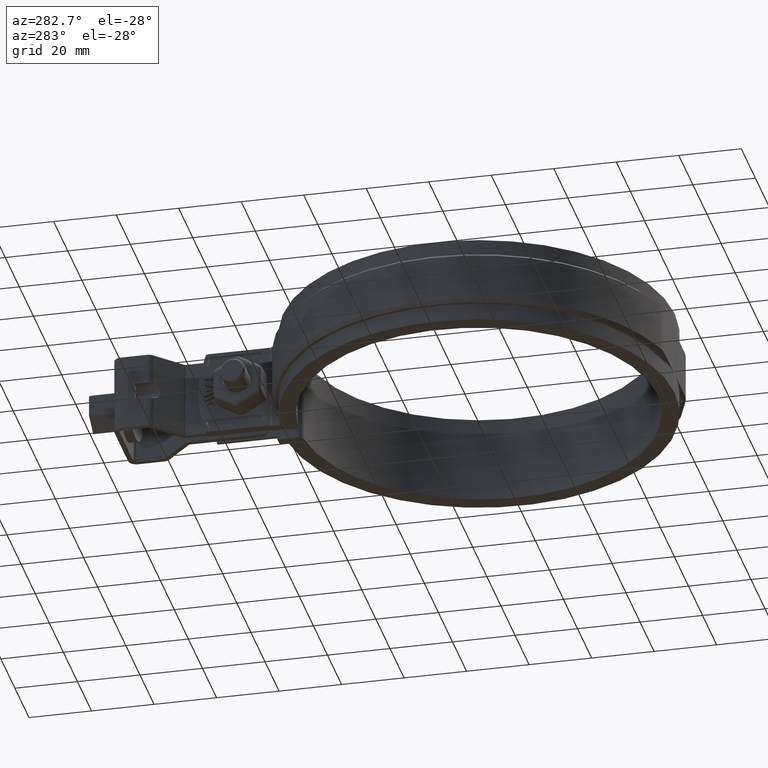
[diagram: clean part render]
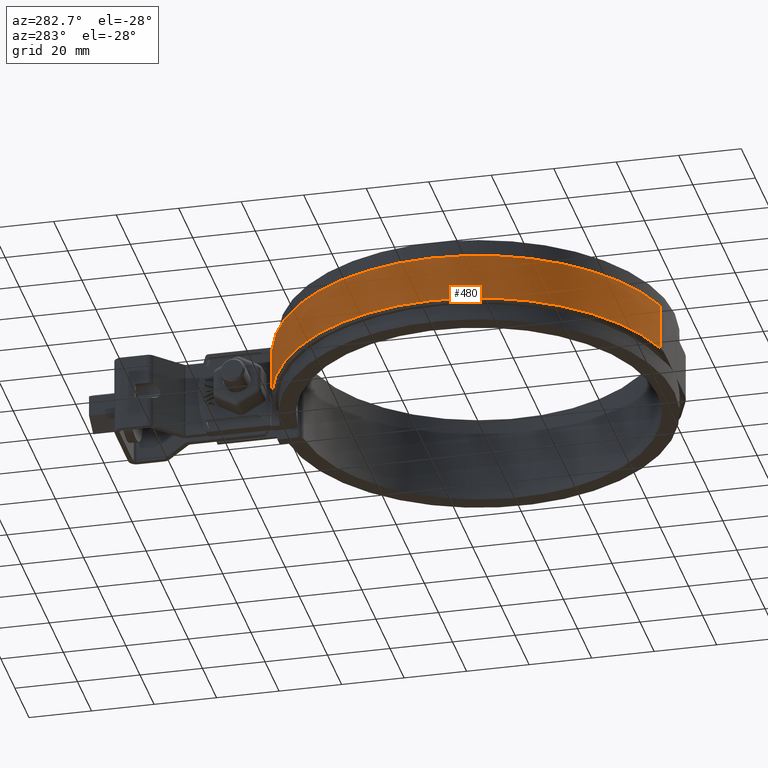
[diagram: same view with one face highlighted and labeled with its STEP entity id]
A machine part, auxiliary view. The second image highlights one B-rep face of the part: STEP entity #480.
In plain terms, the highlighted cylindrical surface (partial cylindrical patch) has radius 64.65 mm, axis along (0, 0, 1).
Its self-contained STEP definition (entity closure, byte-faithful):
#480 = ADVANCED_FACE( '', ( #937 ), #938, .T. );
#937 = FACE_OUTER_BOUND( '', #2194, .T. );
#938 = CYLINDRICAL_SURFACE( '', #2195, 64.6500000000000 );
#2194 = EDGE_LOOP( '', ( #4270, #4271, #4272, #4273 ) );
#2195 = AXIS2_PLACEMENT_3D( '', #4274, #4275, #4276 );
#4270 = ORIENTED_EDGE( '', *, *, #6227, .T. );
#4271 = ORIENTED_EDGE( '', *, *, #6344, .T. );
#4272 = ORIENTED_EDGE( '', *, *, #6351, .T. );
#4273 = ORIENTED_EDGE( '', *, *, #6348, .T. );
#4274 = CARTESIAN_POINT( '', ( -4.33680868994202E-015, 5.55111512312578E-014, -8.50000000000000 ) );
#4275 = DIRECTION( '', ( 0.000000000000000, 0.000000000000000, 1.00000000000000 ) );
#4276 = DIRECTION( '', ( -0.0773395204949730, 0.997004813714361, 0.000000000000000 ) );
#6227 = EDGE_CURVE( '', #7279, #7277, #7280, .T. );
#6344 = EDGE_CURVE( '', #7277, #7460, #7462, .T. );
#6348 = EDGE_CURVE( '', #7440, #7279, #7467, .T. );
#6351 = EDGE_CURVE( '', #7460, #7440, #7470, .T. );
#7277 = VERTEX_POINT( '', #10465 );
#7279 = VERTEX_POINT( '', #10470 );
#7280 = LINE( '', #10471, #10472 );
#7440 = VERTEX_POINT( '', #10818 );
#7460 = VERTEX_POINT( '', #10853 );
#7462 = CIRCLE( '', #10856, 64.6500000000000 );
#7467 = CIRCLE( '', #10863, 64.6500000000000 );
#7470 = LINE( '', #10867, #10868 );
#10465 = CARTESIAN_POINT( '', ( -6.00000000000000, 64.3709756023630, -7.50000000000000 ) );
#10470 = CARTESIAN_POINT( '', ( -6.00000000000000, 64.3709756023630, 7.49999999999999 ) );
#10471 = CARTESIAN_POINT( '', ( -6.00000000000000, 64.3709756023630, -8.50000000000000 ) );
#10472 = VECTOR( '', #12557, 1000.00000000000 );
#10818 = CARTESIAN_POINT( '', ( -18.1643848332456, -62.0457703927492, 7.49999999999999 ) );
#10853 = CARTESIAN_POINT( '', ( -18.1643848332456, -62.0457703927492, -7.50000000000000 ) );
#10856 = AXIS2_PLACEMENT_3D( '', #12723, #12724, #12725 );
#10863 = AXIS2_PLACEMENT_3D( '', #12731, #12732, #12733 );
#10867 = CARTESIAN_POINT( '', ( -18.1643848332456, -62.0457703927492, -8.50000000000000 ) );
#10868 = VECTOR( '', #12738, 1000.00000000000 );
#12557 = DIRECTION( '', ( 0.000000000000000, 0.000000000000000, -1.00000000000000 ) );
#12723 = CARTESIAN_POINT( '', ( -4.33680868994202E-015, 5.55111512312578E-014, -7.50000000000000 ) );
#12724 = DIRECTION( '', ( 0.000000000000000, 0.000000000000000, 1.00000000000000 ) );
#12725 = DIRECTION( '', ( 1.00000000000000, 0.000000000000000, 0.000000000000000 ) );
#12731 = CARTESIAN_POINT( '', ( -4.33680868994202E-015, 5.55111512312578E-014, 7.49999999999999 ) );
#12732 = DIRECTION( '', ( 0.000000000000000, 0.000000000000000, -1.00000000000000 ) );
#12733 = DIRECTION( '', ( -1.00000000000000, 0.000000000000000, 0.000000000000000 ) );
#12738 = DIRECTION( '', ( 0.000000000000000, 0.000000000000000, 1.00000000000000 ) );